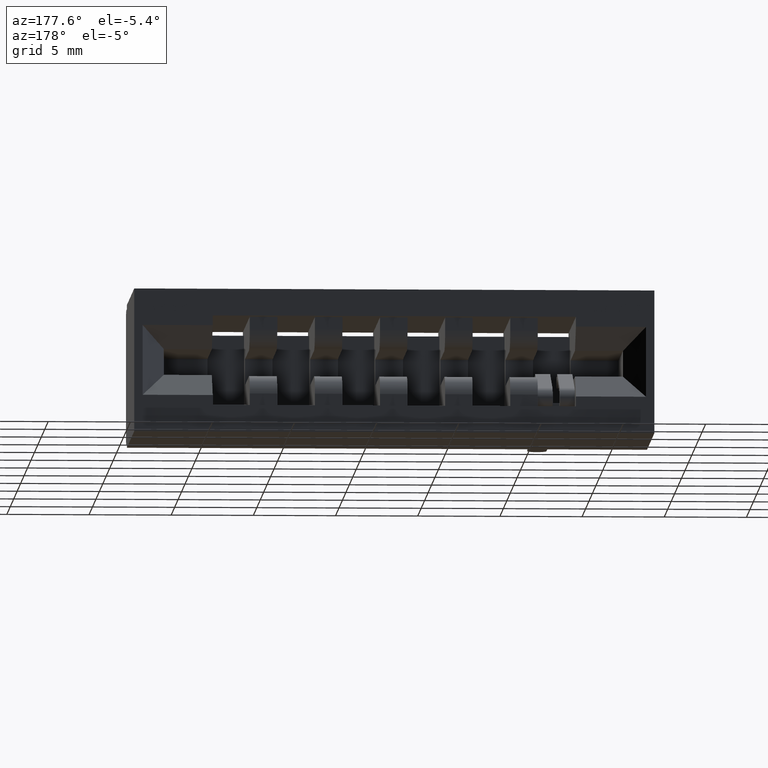
[diagram: clean part render]
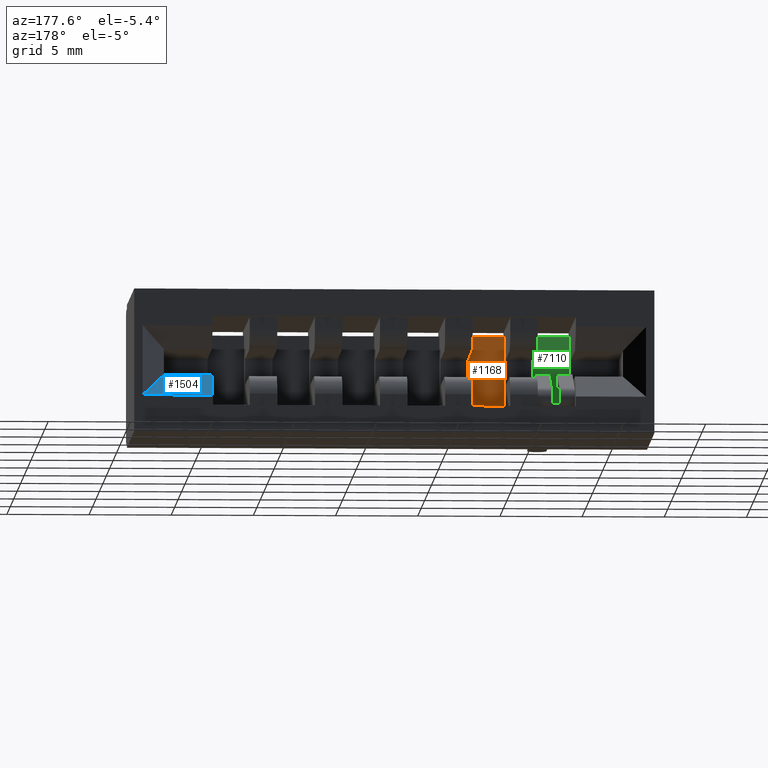
[diagram: same view with three faces highlighted in distinct colors, each labeled with its STEP entity id]
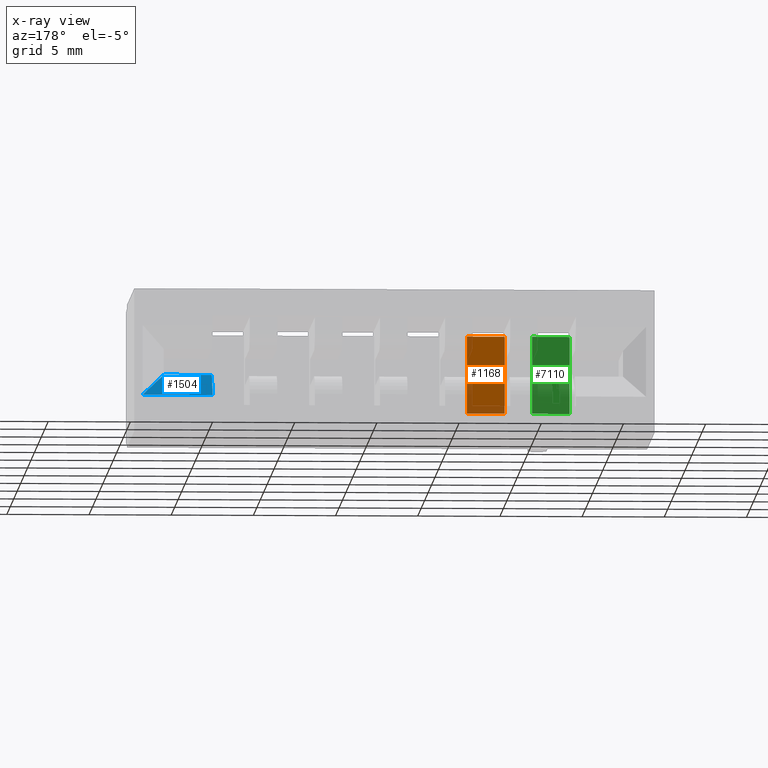
[diagram: x-ray of the same camera — body ghosted, the three highlighted faces saturated]
A machine part, auxiliary view with three faces highlighted in distinct colors.
The next image is the same camera in x-ray (body ghosted, the three faces saturated) — at least one of them is partly hidden behind the body in this view.
Their STEP definitions:

[orange] entity #1168 — the highlighted planar face has unit normal (0, 1, 0).
#448 = DIRECTION ( 'NONE',  ( 0.0000000000000000000, -0.0000000000000000000, 1.000000000000000000 ) ) ;
#799 = ORIENTED_EDGE ( 'NONE', *, *, #7770, .T. ) ;
#1023 = VECTOR ( 'NONE', #8505, 39.37007874015748100 ) ;
#1168 = ADVANCED_FACE ( 'NONE', ( #8119 ), #9092, .T. ) ;
#1657 = ORIENTED_EDGE ( 'NONE', *, *, #3071, .F. ) ;
#1666 = ORIENTED_EDGE ( 'NONE', *, *, #4803, .T. ) ;
#1680 = ORIENTED_EDGE ( 'NONE', *, *, #3210, .F. ) ;
#1992 = CARTESIAN_POINT ( 'NONE',  ( 0.6420000000000004600, 0.1160000000000000100, -0.2790000000000000300 ) ) ;
#2007 = DIRECTION ( 'NONE',  ( 0.0000000000000000000, 1.000000000000000000, 0.0000000000000000000 ) ) ;
#3009 = CARTESIAN_POINT ( 'NONE',  ( 0.6420000000000004600, 0.1160000000000000100, -0.07900000000000014000 ) ) ;
#3071 = EDGE_CURVE ( 'NONE', #3073, #7101, #5782, .T. ) ;
#3073 = VERTEX_POINT ( 'NONE', #6502 ) ;
#3210 = EDGE_CURVE ( 'NONE', #5712, #5343, #6456, .T. ) ;
#3400 = DIRECTION ( 'NONE',  ( -1.000000000000000000, -0.0000000000000000000, -3.794233324533698900E-016 ) ) ;
#3827 = CARTESIAN_POINT ( 'NONE',  ( 0.6420000000000004600, 0.1160000000000000100, -0.2640000000000000100 ) ) ;
#3868 = CARTESIAN_POINT ( 'NONE',  ( 0.6420000000000004600, 0.1160000000000000100, -0.2640000000000000100 ) ) ;
#4362 = EDGE_LOOP ( 'NONE', ( #1657, #1666, #1680, #799 ) ) ;
#4681 = VECTOR ( 'NONE', #8109, 39.37007874015748100 ) ;
#4803 = EDGE_CURVE ( 'NONE', #3073, #5343, #7097, .T. ) ;
#5343 = VERTEX_POINT ( 'NONE', #8300 ) ;
#5656 = CARTESIAN_POINT ( 'NONE',  ( 0.7320000000000004300, 0.1160000000000000100, -0.06400000000000004300 ) ) ;
#5712 = VERTEX_POINT ( 'NONE', #3827 ) ;
#5782 = LINE ( 'NONE', #6977, #8777 ) ;
#6456 = LINE ( 'NONE', #3868, #4681 ) ;
#6502 = CARTESIAN_POINT ( 'NONE',  ( 0.7320000000000004300, 0.1160000000000000100, -0.07900000000000009800 ) ) ;
#6789 = LINE ( 'NONE', #8514, #1023 ) ;
#6917 = VECTOR ( 'NONE', #7739, 39.37007874015748100 ) ;
#6977 = CARTESIAN_POINT ( 'NONE',  ( 0.6420000000000004600, 0.1160000000000000100, -0.07900000000000014000 ) ) ;
#7097 = LINE ( 'NONE', #5656, #6917 ) ;
#7101 = VERTEX_POINT ( 'NONE', #3009 ) ;
#7448 = AXIS2_PLACEMENT_3D ( 'NONE', #1992, #2007, #448 ) ;
#7739 = DIRECTION ( 'NONE',  ( 0.0000000000000000000, 0.0000000000000000000, -1.000000000000000000 ) ) ;
#7770 = EDGE_CURVE ( 'NONE', #5712, #7101, #6789, .T. ) ;
#8109 = DIRECTION ( 'NONE',  ( 1.000000000000000000, 0.0000000000000000000, -3.794233324533698900E-016 ) ) ;
#8119 = FACE_OUTER_BOUND ( 'NONE', #4362, .T. ) ;
#8300 = CARTESIAN_POINT ( 'NONE',  ( 0.7320000000000004300, 0.1160000000000000100, -0.2640000000000000100 ) ) ;
#8505 = DIRECTION ( 'NONE',  ( -0.0000000000000000000, -0.0000000000000000000, 1.000000000000000000 ) ) ;
#8514 = CARTESIAN_POINT ( 'NONE',  ( 0.6420000000000004600, 0.1160000000000000100, -0.06400000000000001500 ) ) ;
#8777 = VECTOR ( 'NONE', #3400, 39.37007874015748100 ) ;
#9092 = PLANE ( 'NONE',  #7448 ) ;

[blue] entity #1504 — the highlighted planar face has unit normal (0, -0.7071, -0.7071).
#1121 = VERTEX_POINT ( 'NONE', #2765 ) ;
#1365 = FACE_OUTER_BOUND ( 'NONE', #7178, .T. ) ;
#1504 = ADVANCED_FACE ( 'NONE', ( #1365 ), #8430, .F. ) ;
#1835 = VECTOR ( 'NONE', #8807, 39.37007874015748100 ) ;
#2765 = CARTESIAN_POINT ( 'NONE',  ( 1.356000000000000500, 0.4729999999999999800, -0.2555000000000006200 ) ) ;
#3180 = ORIENTED_EDGE ( 'NONE', *, *, #3246, .T. ) ;
#3181 = ORIENTED_EDGE ( 'NONE', *, *, #3752, .F. ) ;
#3188 = ORIENTED_EDGE ( 'NONE', *, *, #8808, .F. ) ;
#3196 = ORIENTED_EDGE ( 'NONE', *, *, #8773, .F. ) ;
#3246 = EDGE_CURVE ( 'NONE', #3523, #3577, #6074, .T. ) ;
#3523 = VERTEX_POINT ( 'NONE', #7010 ) ;
#3577 = VERTEX_POINT ( 'NONE', #8275 ) ;
#3752 = EDGE_CURVE ( 'NONE', #1121, #3577, #8687, .T. ) ;
#4397 = DIRECTION ( 'NONE',  ( 0.0000000000000000000, 0.7071067811865458000, -0.7071067811865493500 ) ) ;
#5106 = VECTOR ( 'NONE', #8397, 39.37007874015748100 ) ;
#5349 = LINE ( 'NONE', #7540, #5106 ) ;
#5548 = CARTESIAN_POINT ( 'NONE',  ( 0.0000000000000000000, 0.4729999999999999800, -0.2555000000000006200 ) ) ;
#5674 = CARTESIAN_POINT ( 'NONE',  ( 0.3709999999999996600, 0.4199999999999997600, -0.2025000000000001000 ) ) ;
#5983 = LINE ( 'NONE', #7674, #8957 ) ;
#6074 = LINE ( 'NONE', #7393, #7512 ) ;
#6291 = VERTEX_POINT ( 'NONE', #8674 ) ;
#7010 = CARTESIAN_POINT ( 'NONE',  ( 1.471000000000000800, 0.4199999999999997100, -0.2025000000000001000 ) ) ;
#7177 = AXIS2_PLACEMENT_3D ( 'NONE', #5674, #8719, #4397 ) ;
#7178 = EDGE_LOOP ( 'NONE', ( #3180, #3181, #3188, #3196 ) ) ;
#7263 = DIRECTION ( 'NONE',  ( 0.5773502691896267300, 0.5773502691896238400, -0.5773502691896267300 ) ) ;
#7393 = CARTESIAN_POINT ( 'NONE',  ( 1.104333333333332500, 0.05333333333333335800, 0.1641666666666681500 ) ) ;
#7512 = VECTOR ( 'NONE', #7263, 39.37007874015748100 ) ;
#7540 = CARTESIAN_POINT ( 'NONE',  ( 1.356000000000000500, 0.4199999999999997600, -0.2025000000000001000 ) ) ;
#7589 = DIRECTION ( 'NONE',  ( -1.000000000000000000, 0.0000000000000000000, 0.0000000000000000000 ) ) ;
#7674 = CARTESIAN_POINT ( 'NONE',  ( 0.3709999999999996600, 0.4199999999999997600, -0.2025000000000001000 ) ) ;
#8275 = CARTESIAN_POINT ( 'NONE',  ( 1.524000000000001400, 0.4729999999999999800, -0.2555000000000006200 ) ) ;
#8397 = DIRECTION ( 'NONE',  ( -0.0000000000000000000, 0.7071067811865458000, -0.7071067811865493500 ) ) ;
#8430 = PLANE ( 'NONE',  #7177 ) ;
#8674 = CARTESIAN_POINT ( 'NONE',  ( 1.356000000000000500, 0.4199999999999997600, -0.2025000000000001000 ) ) ;
#8687 = LINE ( 'NONE', #5548, #1835 ) ;
#8719 = DIRECTION ( 'NONE',  ( 0.0000000000000000000, -0.7071067811865493500, -0.7071067811865458000 ) ) ;
#8773 = EDGE_CURVE ( 'NONE', #3523, #6291, #5983, .T. ) ;
#8807 = DIRECTION ( 'NONE',  ( 1.000000000000000000, 0.0000000000000000000, 0.0000000000000000000 ) ) ;
#8808 = EDGE_CURVE ( 'NONE', #6291, #1121, #5349, .T. ) ;
#8957 = VECTOR ( 'NONE', #7589, 39.37007874015748100 ) ;

[green] entity #7110 — the highlighted planar face has unit normal (0, 1, 0).
#1018 = VERTEX_POINT ( 'NONE', #6639 ) ;
#1030 = EDGE_CURVE ( 'NONE', #3578, #6787, #4622, .T. ) ;
#1167 = DIRECTION ( 'NONE',  ( 1.000000000000000000, 0.0000000000000000000, -3.794233324533698900E-016 ) ) ;
#1388 = EDGE_LOOP ( 'NONE', ( #8180, #8225, #8231, #8239 ) ) ;
#1895 = VERTEX_POINT ( 'NONE', #4533 ) ;
#2676 = VECTOR ( 'NONE', #4515, 39.37007874015748100 ) ;
#2870 = PLANE ( 'NONE',  #5902 ) ;
#2919 = VECTOR ( 'NONE', #1167, 39.37007874015748100 ) ;
#3578 = VERTEX_POINT ( 'NONE', #4526 ) ;
#3879 = CARTESIAN_POINT ( 'NONE',  ( 0.5760000000000004000, 0.1160000000000000100, -0.2640000000000000100 ) ) ;
#4349 = CARTESIAN_POINT ( 'NONE',  ( 0.4860000000000004300, 0.1160000000000000100, -0.07900000000000014000 ) ) ;
#4515 = DIRECTION ( 'NONE',  ( 0.0000000000000000000, 0.0000000000000000000, -1.000000000000000000 ) ) ;
#4526 = CARTESIAN_POINT ( 'NONE',  ( 0.4860000000000004300, 0.1160000000000000100, -0.2640000000000000100 ) ) ;
#4533 = CARTESIAN_POINT ( 'NONE',  ( 0.4860000000000004300, 0.1160000000000000100, -0.07900000000000014000 ) ) ;
#4618 = LINE ( 'NONE', #6134, #2676 ) ;
#4622 = LINE ( 'NONE', #7748, #2919 ) ;
#5580 = FACE_OUTER_BOUND ( 'NONE', #1388, .T. ) ;
#5701 = DIRECTION ( 'NONE',  ( -0.0000000000000000000, -0.0000000000000000000, 1.000000000000000000 ) ) ;
#5902 = AXIS2_PLACEMENT_3D ( 'NONE', #7274, #7025, #6287 ) ;
#6134 = CARTESIAN_POINT ( 'NONE',  ( 0.5760000000000004000, 0.1160000000000000100, -0.06400000000000004300 ) ) ;
#6203 = DIRECTION ( 'NONE',  ( -1.000000000000000000, -0.0000000000000000000, -3.794233324533698900E-016 ) ) ;
#6287 = DIRECTION ( 'NONE',  ( 0.0000000000000000000, -0.0000000000000000000, 1.000000000000000000 ) ) ;
#6457 = EDGE_CURVE ( 'NONE', #3578, #1895, #8216, .T. ) ;
#6470 = EDGE_CURVE ( 'NONE', #1018, #6787, #4618, .T. ) ;
#6639 = CARTESIAN_POINT ( 'NONE',  ( 0.5760000000000004000, 0.1160000000000000100, -0.07900000000000009800 ) ) ;
#6684 = LINE ( 'NONE', #4349, #8295 ) ;
#6787 = VERTEX_POINT ( 'NONE', #3879 ) ;
#7025 = DIRECTION ( 'NONE',  ( 0.0000000000000000000, 1.000000000000000000, 0.0000000000000000000 ) ) ;
#7110 = ADVANCED_FACE ( 'NONE', ( #5580 ), #2870, .T. ) ;
#7274 = CARTESIAN_POINT ( 'NONE',  ( 0.4860000000000004300, 0.1160000000000000100, -0.2790000000000000300 ) ) ;
#7748 = CARTESIAN_POINT ( 'NONE',  ( 0.4860000000000004300, 0.1160000000000000100, -0.2640000000000000100 ) ) ;
#7822 = CARTESIAN_POINT ( 'NONE',  ( 0.4860000000000004300, 0.1160000000000000100, -0.06400000000000001500 ) ) ;
#8026 = VECTOR ( 'NONE', #5701, 39.37007874015748100 ) ;
#8180 = ORIENTED_EDGE ( 'NONE', *, *, #8181, .F. ) ;
#8181 = EDGE_CURVE ( 'NONE', #1018, #1895, #6684, .T. ) ;
#8216 = LINE ( 'NONE', #7822, #8026 ) ;
#8225 = ORIENTED_EDGE ( 'NONE', *, *, #6470, .T. ) ;
#8231 = ORIENTED_EDGE ( 'NONE', *, *, #1030, .F. ) ;
#8239 = ORIENTED_EDGE ( 'NONE', *, *, #6457, .T. ) ;
#8295 = VECTOR ( 'NONE', #6203, 39.37007874015748100 ) ;